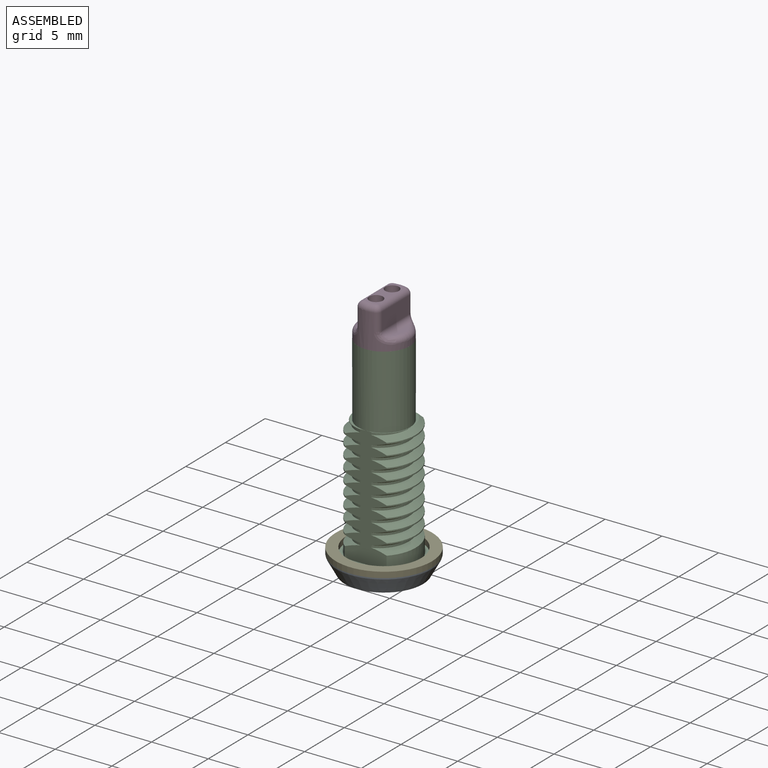
[diagram: assembled view]
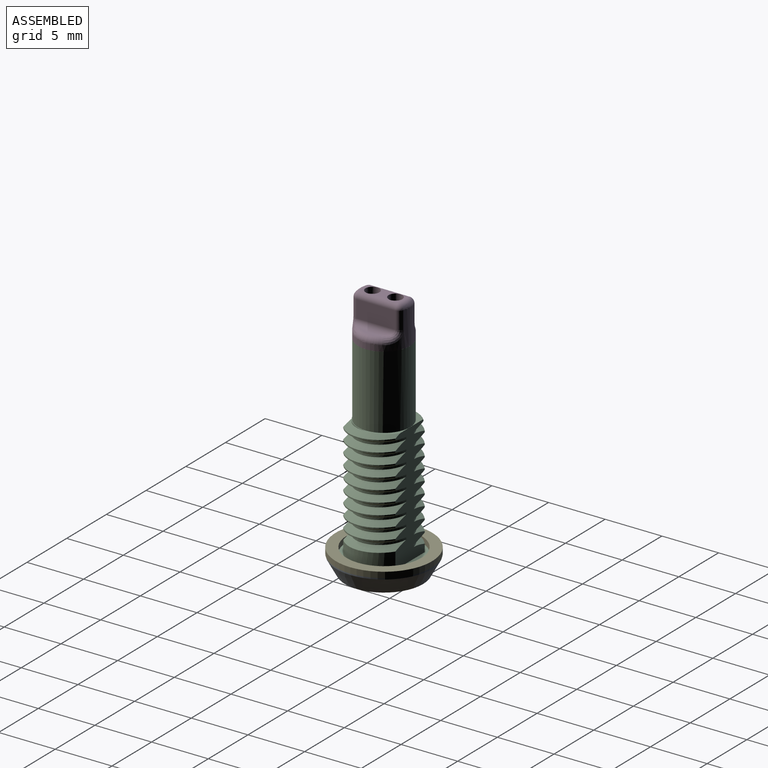
[diagram: assembled view, second angle]
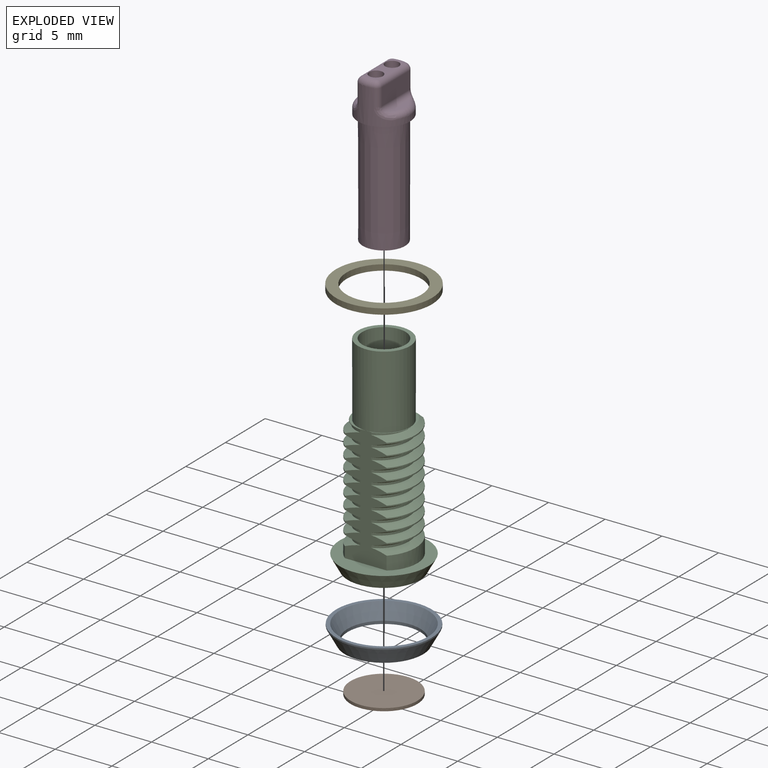
[diagram: exploded view]
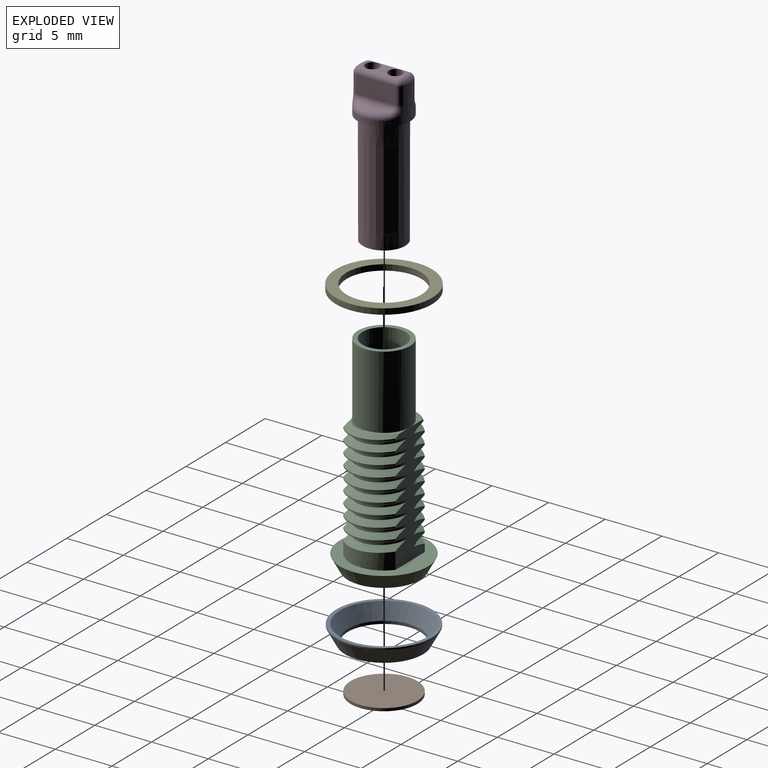
[diagram: exploded view, second angle]
ASSEMBLY  parts=5 mates=4
PART A: 6 faces, bbox 8.4x8.4x1.5 mm
  f0: cone r=3.2mm half-angle=28.6deg, axis (0,0,1), area 32.2mm2, adj f2,f5
  f1: plane 6.91x6.91mm, normal (0,0,-1), area 5.3mm2, adj f2,f3
  f2: cylinder r=3.2mm len=6.4mm, axis (0,0,-1), area 5.1mm2, adj f0,f1
  f3: cone r=0mm half-angle=28.6deg, axis (0,0,1), area 38.3mm2, adj f1,f4
  f4: cylinder r=4.22mm len=8.43mm, axis (0,0,-1), area 3.4mm2, adj f3,f5
  f5: plane 8.43x8.43mm, normal (0,0,1), area 8.2mm2, adj f0,f4
PART B: 3 faces, bbox 5.9x5.9x0.8 mm
  f0: sphere r=11.58mm, area 27.7mm2, adj f1
  f1: cylinder r=2.95mm len=5.89mm, axis (0,0,-1), area 4.7mm2, adj f0,f2
  f2: plane 5.89x5.89mm, normal (0,0,1), area 27.3mm2, adj f1
PART C: 103 faces, bbox 8x8x18.6 mm
  f0: plane 7.79x7.79mm, normal (0,0,1), area 23.6mm2, adj f46,f67,f68,f89,f92,f101
  f1: cylinder r=2.35mm len=4.6mm, axis (0,0,1), area 1.3mm2, adj f49,f50,f89,f92
  f2: cylinder r=2.95mm len=4.6mm, axis (0,0,-1), area 0.6mm2, adj f50,f51,f89,f92
  f3: cylinder r=2.35mm len=4.6mm, axis (0,0,1), area 1.3mm2, adj f51,f52,f89,f92
  f4: cylinder r=2.95mm len=4.6mm, axis (0,0,-1), area 0.6mm2, adj f52,f53,f89,f92
  f5: cylinder r=2.35mm len=4.6mm, axis (0,0,1), area 1.3mm2, adj f53,f54,f89,f92
  f6: cylinder r=2.95mm len=4.6mm, axis (0,0,-1), area 0.6mm2, adj f54,f55,f89,f92
  f7: cylinder r=2.35mm len=4.6mm, axis (0,0,1), area 1.3mm2, adj f55,f56,f89,f92
  f8: cylinder r=2.95mm len=4.6mm, axis (0,0,-1), area 0.6mm2, adj f56,f57,f89,f92
  f9: cylinder r=2.35mm len=4.6mm, axis (0,0,1), area 1.3mm2, adj f57,f58,f89,f92
  f10: cylinder r=2.95mm len=4.6mm, axis (0,0,-1), area 0.6mm2, adj f58,f59,f89,f92
  f11: cylinder r=2.35mm len=4.6mm, axis (0,0,1), area 1.3mm2, adj f59,f60,f89,f92
  f12: cylinder r=2.95mm len=4.6mm, axis (0,0,-1), area 0.6mm2, adj f60,f61,f89,f92
  f13: cylinder r=2.35mm len=4.6mm, axis (0,0,1), area 1.3mm2, adj f61,f62,f89,f92
  f14: cylinder r=2.95mm len=4.6mm, axis (0,0,-1), area 0.6mm2, adj f62,f63,f89,f92
  f15: cylinder r=2.35mm len=4.6mm, axis (0,0,1), area 1.3mm2, adj f63,f64,f89,f92
  f16: cylinder r=2.95mm len=4.6mm, axis (0,0,-1), area 0.6mm2, adj f64,f65,f89,f92
  f17: cylinder r=2.35mm len=4.6mm, axis (0,0,1), area 1.3mm2, adj f65,f66,f89,f92
  f18: cylinder r=2.35mm len=4.6mm, axis (0,0,1), area 1.3mm2, adj f69,f70,f89,f92
  f19: cylinder r=2.95mm len=2.3mm, axis (0,0,-1), area 0.3mm2, adj f20,f70,f71,f92
  f20: cylinder r=2.95mm len=2.3mm, axis (0,0,-1), area 0.3mm2, adj f19,f70,f71,f89
  f21: cylinder r=2.35mm len=4.6mm, axis (0,0,1), area 1.3mm2, adj f71,f72,f89,f92
  f22: cylinder r=2.95mm len=2.3mm, axis (0,0,-1), area 0.3mm2, adj f23,f72,f73,f92
  f23: cylinder r=2.95mm len=2.3mm, axis (0,0,-1), area 0.3mm2, adj f22,f72,f73,f89
  f24: cylinder r=2.35mm len=4.6mm, axis (0,0,1), area 1.3mm2, adj f73,f74,f89,f92
  f25: cylinder r=2.95mm len=2.3mm, axis (0,0,-1), area 0.3mm2, adj f26,f74,f75,f92
  f26: cylinder r=2.95mm len=2.3mm, axis (0,0,-1), area 0.3mm2, adj f25,f74,f75,f89
  f27: cylinder r=2.35mm len=4.6mm, axis (0,0,1), area 1.3mm2, adj f75,f76,f89,f92
  f28: cylinder r=2.95mm len=2.3mm, axis (0,0,-1), area 0.3mm2, adj f29,f76,f77,f92
  f29: cylinder r=2.95mm len=2.3mm, axis (0,0,-1), area 0.3mm2, adj f28,f76,f77,f89
  f30: cylinder r=2.35mm len=4.6mm, axis (0,0,1), area 1.3mm2, adj f77,f78,f89,f92
  f31: cylinder r=2.95mm len=2.3mm, axis (0,0,-1), area 0.3mm2, adj f32,f78,f79,f92
  f32: cylinder r=2.95mm len=2.3mm, axis (0,0,-1), area 0.3mm2, adj f31,f78,f79,f89
  f33: cylinder r=2.35mm len=4.6mm, axis (0,0,1), area 1.3mm2, adj f79,f80,f89,f92
  f34: cylinder r=2.95mm len=2.3mm, axis (0,0,-1), area 0.3mm2, adj f35,f80,f81,f92
  f35: cylinder r=2.95mm len=2.3mm, axis (0,0,-1), area 0.3mm2, adj f34,f80,f81,f89
  f36: cylinder r=2.35mm len=4.6mm, axis (0,0,1), area 1.3mm2, adj f81,f82,f89,f92
  f37: cylinder r=2.95mm len=2.3mm, axis (0,0,-1), area 0.3mm2, adj f38,f82,f83,f92
  f38: cylinder r=2.95mm len=2.3mm, axis (0,0,-1), area 0.3mm2, adj f37,f82,f83,f89
  f39: cylinder r=2.35mm len=4.6mm, axis (0,0,1), area 1.3mm2, adj f83,f84,f89,f92
  f40: cylinder r=2.95mm len=2.3mm, axis (0,0,-1), area 0.3mm2, adj f41,f84,f85,f92
  f41: cylinder r=2.95mm len=2.3mm, axis (0,0,-1), area 0.3mm2, adj f40,f84,f85,f89
  f42: cylinder r=2.35mm len=4.6mm, axis (0,0,1), area 1.3mm2, adj f85,f86,f89,f92
  f43: cylinder r=2.95mm len=2.3mm, axis (0,0,-1), area 0.3mm2, adj f44,f86,f87,f92
  f44: cylinder r=2.95mm len=2.3mm, axis (0,0,-1), area 0.3mm2, adj f43,f86,f87,f89
  f45: cylinder r=2.35mm len=4.6mm, axis (0,0,1), area 1.3mm2, adj f87,f88,f89,f92,f93
  f46: cylinder r=2.95mm len=2.3mm, axis (0,0,-1), area 2.3mm2, adj f0,f68,f69,f89
  f47: bspline ~0.29x0.1mm, area 0mm2, adj f89,f90,f94
  f48: cylinder r=2.95mm len=4.6mm, axis (0,0,-1), area 0.6mm2, adj f49,f89,f91,f92
  f49: bspline ~5.79x2.51mm, area 4.1mm2, adj f1,f48,f89,f92
  f50: bspline ~5.79x2.51mm, area 4.1mm2, adj f1,f2,f89,f92
  f51: bspline ~5.79x2.51mm, area 4.1mm2, adj f2,f3,f89,f92
  f52: bspline ~5.79x2.51mm, area 4.1mm2, adj f3,f4,f89,f92
  f53: bspline ~5.79x2.51mm, area 4.1mm2, adj f4,f5,f89,f92
  f54: bspline ~5.79x2.51mm, area 4.1mm2, adj f5,f6,f89,f92
  f55: bspline ~5.79x2.51mm, area 4.1mm2, adj f6,f7,f89,f92
  f56: bspline ~5.79x2.51mm, area 4.1mm2, adj f7,f8,f89,f92
  f57: bspline ~5.79x2.51mm, area 4.1mm2, adj f8,f9,f89,f92
  f58: bspline ~5.79x2.51mm, area 4.1mm2, adj f9,f10,f89,f92
  f59: bspline ~5.79x2.51mm, area 4.1mm2, adj f10,f11,f89,f92
  f60: bspline ~5.79x2.51mm, area 4.1mm2, adj f11,f12,f89,f92
  f61: bspline ~5.79x2.51mm, area 4.1mm2, adj f12,f13,f89,f92
  f62: bspline ~5.79x2.51mm, area 4.1mm2, adj f13,f14,f89,f92
  f63: bspline ~5.79x2.51mm, area 4.1mm2, adj f14,f15,f89,f92
  f64: bspline ~5.79x2.51mm, area 4.1mm2, adj f15,f16,f89,f92
  f65: bspline ~5.79x2.51mm, area 4.1mm2, adj f16,f17,f89,f92
  f66: bspline ~5.79x2.51mm, area 4.1mm2, adj f17,f67,f89,f92
  f67: cylinder r=2.95mm len=4.6mm, axis (0,0,-1), area 7mm2, adj f0,f66,f89,f92
  f68: cylinder r=2.95mm len=2.3mm, axis (0,0,-1), area 2mm2, adj f0,f46,f69,f92
  f69: bspline ~5.79x2.51mm, area 4.1mm2, adj f18,f46,f68,f89,f92
  f70: bspline ~5.79x2.51mm, area 4.1mm2, adj f18,f19,f20,f89,f92
  f71: bspline ~5.79x2.51mm, area 4.1mm2, adj f19,f20,f21,f89,f92
  f72: bspline ~5.79x2.51mm, area 4.1mm2, adj f21,f22,f23,f89,f92
  f73: bspline ~5.79x2.51mm, area 4.1mm2, adj f22,f23,f24,f89,f92
  f74: bspline ~5.79x2.51mm, area 4.1mm2, adj f24,f25,f26,f89,f92
  f75: bspline ~5.79x2.51mm, area 4.1mm2, adj f25,f26,f27,f89,f92
  f76: bspline ~5.79x2.51mm, area 4.1mm2, adj f27,f28,f29,f89,f92
  f77: bspline ~5.79x2.51mm, area 4.1mm2, adj f28,f29,f30,f89,f92
  f78: bspline ~5.79x2.51mm, area 4.1mm2, adj f30,f31,f32,f89,f92
  f79: bspline ~5.79x2.51mm, area 4.1mm2, adj f31,f32,f33,f89,f92
  f80: bspline ~5.79x2.51mm, area 4.1mm2, adj f33,f34,f35,f89,f92
  f81: bspline ~5.79x2.51mm, area 4.1mm2, adj f34,f35,f36,f89,f92
  f82: bspline ~5.79x2.51mm, area 4.1mm2, adj f36,f37,f38,f89,f92
  f83: bspline ~5.79x2.51mm, area 4.1mm2, adj f37,f38,f39,f89,f92
  f84: bspline ~5.79x2.51mm, area 4.1mm2, adj f39,f40,f41,f89,f92
  f85: bspline ~5.79x2.51mm, area 4.1mm2, adj f40,f41,f42,f89,f92
  f86: bspline ~5.79x2.51mm, area 4.1mm2, adj f42,f43,f44,f89,f92
  f87: bspline ~5.79x2.51mm, area 4.1mm2, adj f43,f44,f45,f89,f92
  f88: bspline ~5.49x2.37mm, area 1.8mm2, adj f45,f92,f93
  f89: plane 10.89x3.91mm, normal (0,-1,0), area 26.3mm2, adj f0,f1,f2,f3,f4,f5,f6,f7
  f90: cylinder r=2.35mm len=2.33mm, axis (0,0,1), area 0.4mm2, adj f47,f89,f91,f94
  f91: bspline ~5.49x2.5mm, area 3.5mm2, adj f48,f89,f90,f92,f94
  f92: plane 10.89x3.91mm, normal (0,1,0), area 26.6mm2, adj f0,f1,f2,f3,f4,f5,f6,f7
  f93: bspline ~4.72x2.62mm, area 1.2mm2, adj f45,f88,f89,f92,f95,f96
  f94: plane 4.67x2.44mm, normal (0,0,1), area 0.8mm2, adj f47,f89,f90,f91,f92,f96,f97
  f95: plane 4.59x2.56mm, normal (0,0,1), area 1.5mm2, adj f92,f93,f96,f97
  f96: cylinder r=2.3mm len=6.51mm, axis (0,0,1), area 46.8mm2, adj f89,f93,f94,f95,f97,f98
  f97: cylinder r=2.3mm len=6.48mm, axis (0,0,1), area 46.8mm2, adj f94,f95,f96,f98
  f98: plane 4.6x4.6mm, normal (0,0,1), area 5.2mm2, adj f96,f97,f100
  f99: sphere r=1.91mm, area 22.8mm2, adj f100
  f100: cylinder r=1.91mm len=16.26mm, axis (0,0,-1), area 194.7mm2, adj f98,f99
  f101: cone r=3.2mm half-angle=28.6deg, axis (0,0,1), area 32.2mm2, adj f0,f102
  f102: plane 6.4x6.4mm, normal (0,0,-1), area 32.2mm2, adj f101
PART D: 54 faces, bbox 5x5x13.6 mm
  f0: plane 3.05x0.1mm, normal (0,0,-1), area 0.3mm2, adj f1,f2,f7,f8,f11
  f1: cylinder r=0.13mm len=3.05mm, axis (-1,0,0), area 0.6mm2, adj f0,f3,f6,f14
  f2: cylinder r=0.13mm len=0.13mm, axis (-0.02,1,0), area 0mm2, adj f0,f3,f7,f15
  f3: bspline ~0.28x0.25mm, area 0.1mm2, adj f1,f2,f4,f15
  f4: cylinder r=0.13mm len=7.11mm, axis (0,0,-1), area 1.6mm2, adj f3,f14,f15,f17
  f5: cylinder r=0.13mm len=7.11mm, axis (0,0,1), area 1.6mm2, adj f6,f14,f15,f17
  f6: bspline ~0.28x0.25mm, area 0.1mm2, adj f1,f5,f8,f15
  f7: cylinder r=0.13mm len=0.13mm, axis (0.01,1,0), area 0mm2, adj f0,f2,f10,f15
  f8: revolved ~0.13x0.13mm, area 0mm2, adj f0,f6,f9,f15
  f9: bspline ~0.28x0.25mm, area 0.1mm2, adj f8,f11,f13,f15
  f10: bspline ~0.28x0.25mm, area 0.1mm2, adj f7,f11,f12,f15
  f11: cylinder r=0.13mm len=3.05mm, axis (1,0,0), area 0.6mm2, adj f0,f9,f10,f16
  f12: cylinder r=0.13mm len=7.11mm, axis (0,0,1), area 1.6mm2, adj f10,f15,f16,f19
  f13: cylinder r=0.13mm len=7.11mm, axis (0,0,-1), area 1.6mm2, adj f9,f15,f16,f19
  f14: plane 7.11x2.99mm, normal (0,1,0), area 21.1mm2, adj f1,f4,f5,f17
  f15: cone r=0mm half-angle=0.1deg, axis (0,0,-1), area 88.6mm2, adj f2,f3,f4,f5,f6,f7,f8,f9
  f16: plane 7.11x2.99mm, normal (0,-1,0), area 21.1mm2, adj f11,f12,f13,f19
  f17: plane 3.21x1.45mm, normal (0,0,-1), area 2.4mm2, adj f4,f5,f14,f15,f21
  f18: plane 3.75x3.75mm, normal (0,0,-1), area 2.4mm2, adj f15,f22
  f19: plane 3.21x1.45mm, normal (0,0,-1), area 2.4mm2, adj f12,f13,f15,f16,f23
  f20: plane 1.36x1.02mm, normal (0,0,1), area 1mm2, adj f21,f23,f24,f28
  f21: cylinder r=0.61mm len=4.06mm, axis (0,0,1), area 15.6mm2, adj f17,f20,f24,f25,f28
  f22: cone r=0mm half-angle=0.1deg, axis (0,0,1), area 112.8mm2, adj f18,f29
  f23: cylinder r=0.61mm len=4.06mm, axis (0,0,1), area 15.6mm2, adj f19,f20,f24,f28,f33
  f24: cylinder r=0.51mm len=3.43mm, axis (0,1,0), area 2.7mm2, adj f20,f21,f23,f25,f26,f32,f33,f34
  f25: plane 1.02x0.44mm, normal (0,0,1), area 0.2mm2, adj f21,f24,f28,f35
  f26: sphere r=0.51mm, area 0.4mm2, adj f24,f35,f36
  f27: sphere r=0.51mm, area 0.4mm2, adj f28,f35,f38
  f28: cylinder r=0.51mm len=3.43mm, axis (0,-1,0), area 2.7mm2, adj f20,f21,f23,f25,f27,f33,f39,f40
  f29: cylinder r=1.89mm len=3.78mm, axis (0,0,-1), area 6mm2, adj f22,f41
  f30: plane 1.9x0.28mm, normal (0,0,1), area 0.3mm2, adj f31,f42
  f31: cylinder r=0.51mm len=3.43mm, axis (0,-1,0), area 2.1mm2, adj f30,f32,f37,f43
  f32: plane 3.43x1.52mm, normal (-1,0,0), area 5.2mm2, adj f24,f31,f36,f44
  f33: plane 1.02x0.44mm, normal (0,0,1), area 0.2mm2, adj f23,f24,f28,f45
  f34: sphere r=0.51mm, area 0.3mm2, adj f24,f44,f45
  f35: torus R=1.79mm, axis (0,0,1), area 1mm2, adj f25,f26,f27,f49
  f36: cylinder r=0.51mm len=1.52mm, axis (0,0,-1), area 1mm2, adj f26,f32,f37,f49
  f37: bspline ~1.3x1.26mm, area 1.1mm2, adj f31,f36,f42,f49
  f38: cylinder r=0.51mm len=1.52mm, axis (0,0,-1), area 1mm2, adj f27,f40,f46,f49
  f39: sphere r=0.51mm, area 0.3mm2, adj f28,f45,f48
  f40: plane 3.43x1.52mm, normal (1,0,0), area 5.2mm2, adj f28,f38,f47,f48
  f41: plane 4.6x4.6mm, normal (0,0,-1), area 5.4mm2, adj f29,f49
  f42: torus R=1.79mm, axis (0,0,1), area 1.9mm2, adj f30,f37,f43,f49
  f43: bspline ~1.3x1.26mm, area 1.1mm2, adj f31,f42,f44,f49
  f44: cylinder r=0.51mm len=1.52mm, axis (0,0,-1), area 1mm2, adj f32,f34,f43,f49
  f45: torus R=1.79mm, axis (0,0,1), area 1mm2, adj f33,f34,f39,f49
  f46: bspline ~1.3x1.26mm, area 1.1mm2, adj f38,f47,f49,f50
  f47: cylinder r=0.51mm len=3.43mm, axis (0,1,0), area 2.1mm2, adj f40,f46,f51,f52
  f48: cylinder r=0.51mm len=1.52mm, axis (0,0,-1), area 1mm2, adj f39,f40,f49,f52
  f49: cylinder r=2.3mm len=4.6mm, axis (0,0,-1), area 15.3mm2, adj f35,f36,f37,f38,f41,f42,f43,f44
  f50: torus R=1.79mm, axis (0,0,1), area 0.9mm2, adj f46,f49,f51,f53
  f51: plane 1.88x0.27mm, normal (0,0,1), area 0.3mm2, adj f47,f50,f53
  f52: bspline ~1.3x1.26mm, area 1.1mm2, adj f47,f48,f49,f53
  f53: torus R=1.79mm, axis (0,0,1), area 0.9mm2, adj f49,f50,f51,f52
PART E: 4 faces, bbox 8.5x8.5x0.5 mm
  f0: cylinder r=4.25mm len=8.5mm, axis (0,0,-1), area 13.6mm2, adj f1,f2
  f1: plane 8.5x8.5mm, normal (0,0,1), area 22.5mm2, adj f0,f3
  f2: plane 8.5x8.5mm, normal (0,0,-1), area 22.5mm2, adj f0,f3
  f3: cylinder r=3.3mm len=6.6mm, axis (0,0,-1), area 10.5mm2, adj f1,f2
PLACE A t=(0,0,-7.24)mm
PLACE B t=(0,0,-7.24)mm fixed
PLACE C t=(0,0,-7.24)mm
PLACE D t=(0,0,10.92)mm
PLACE E rot(axis=(0,0,1),180deg) t=(0,0,-5.72)mm
MATE fastened A.f0 <-> C.f2  axis (0,0,1) through (0,0,-6.35)mm
MATE fastened D.f15 <-> C.f2  axis (0,0,-1) through (0,0,11.43)mm
MATE fastened E.f0 <-> C.f18  axis (0,0,-1) through (0,0,-5.72)mm
MATE fastened B.f1 <-> C.f2  axis (0,0,1) through (0,0,-6.98)mm
